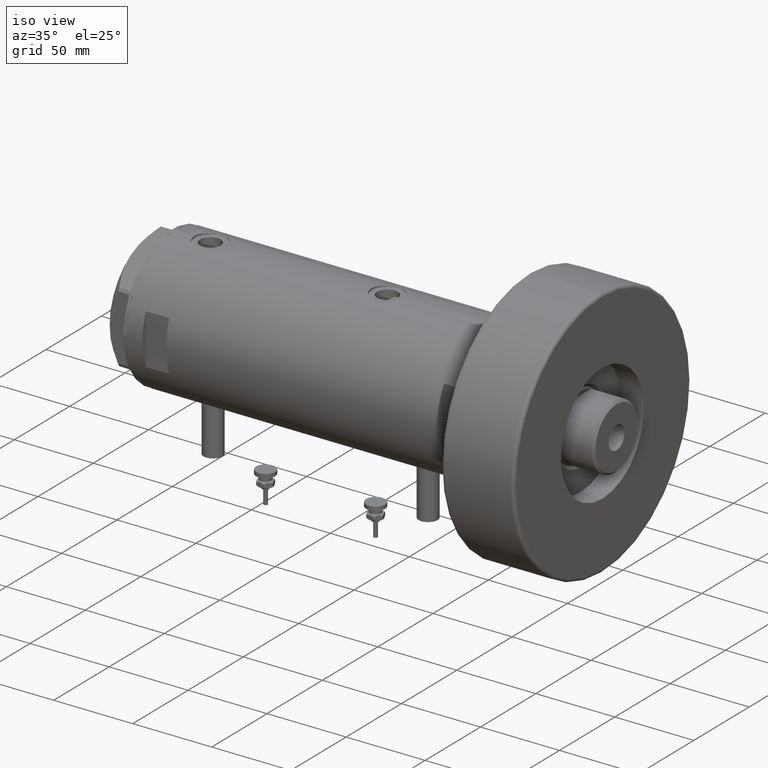
[diagram: clean part render]
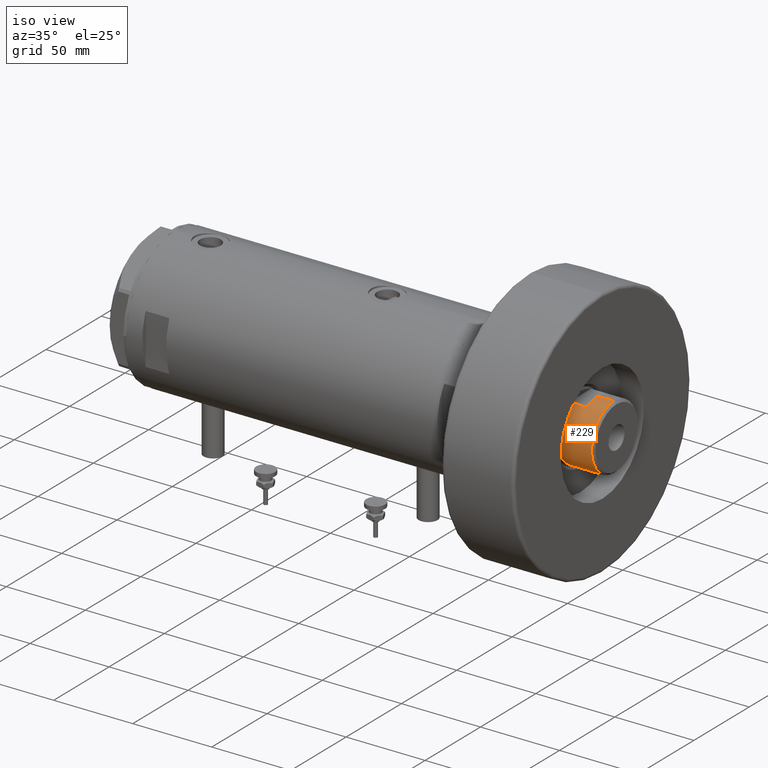
[diagram: same view with one face highlighted and labeled with its STEP entity id]
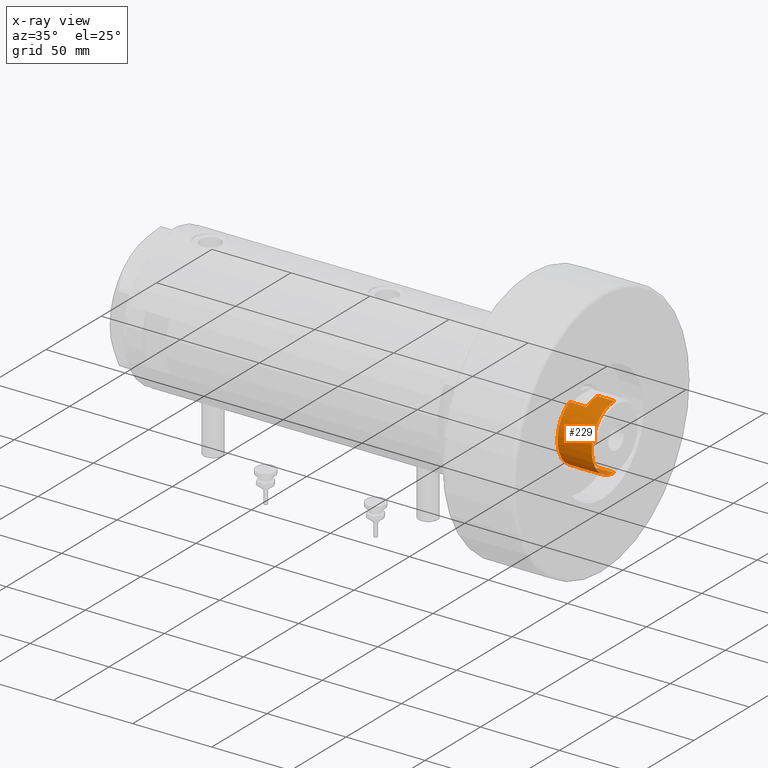
[diagram: x-ray of the same camera — body ghosted, the highlighted face saturated]
A machine part, iso view. The second image highlights one B-rep face of the part: STEP entity #229.
The next image is the same camera in x-ray: the body ghosted, the highlighted face saturated — about 0% of this face is hidden behind the body in this view.
In plain terms, the highlighted cylindrical surface (partial cylindrical patch) has radius 20.5 mm, axis along (-1, -0, 0).
Its self-contained STEP definition (entity closure, byte-faithful):
#2 = FACE_OUTER_BOUND ( 'NONE', #4655, .T. ) ;
#19 = CARTESIAN_POINT ( 'NONE',  ( 20.50000000000000355, 2.510525938252074481E-15, 251.9000000000001194 ) ) ;
#20 = CARTESIAN_POINT ( 'NONE',  ( -17.97852886083842705, -9.849999999999996092, 241.3000000000000114 ) ) ;
#69 = LINE ( 'NONE', #1146, #5638 ) ;
#76 = LINE ( 'NONE', #1019, #3202 ) ;
#103 = CYLINDRICAL_SURFACE ( 'NONE', #2315, 20.50000000000000355 ) ;
#229 = ADVANCED_FACE ( 'NONE', ( #2 ), #103, .T. ) ;
#287 = DIRECTION ( 'NONE',  ( 1.000000000000000000, 0.000000000000000000, 0.000000000000000000 ) ) ;
#379 = CARTESIAN_POINT ( 'NONE',  ( 17.97852886083843060, -9.849999999999994316, 241.3000000000000114 ) ) ;
#410 = DIRECTION ( 'NONE',  ( -0.000000000000000000, -0.000000000000000000, -1.000000000000000000 ) ) ;
#448 = VERTEX_POINT ( 'NONE', #5692 ) ;
#632 = EDGE_CURVE ( 'NONE', #5175, #656, #5910, .T. ) ;
#656 = VERTEX_POINT ( 'NONE', #4840 ) ;
#723 = EDGE_CURVE ( 'NONE', #5978, #2205, #6122, .T. ) ;
#1019 = CARTESIAN_POINT ( 'NONE',  ( -17.97852886083842350, -9.850000000000001421, 241.3000000000000114 ) ) ;
#1146 = CARTESIAN_POINT ( 'NONE',  ( 20.50000000000000355, 2.510525938252074481E-15, 241.3000000000000114 ) ) ;
#1244 = ORIENTED_EDGE ( 'NONE', *, *, #5894, .F. ) ;
#1262 = VERTEX_POINT ( 'NONE', #20 ) ;
#1325 = LINE ( 'NONE', #379, #1334 ) ;
#1334 = VECTOR ( 'NONE', #4749, 1000.000000000000000 ) ;
#1452 = EDGE_CURVE ( 'NONE', #3882, #2574, #5801, .T. ) ;
#1832 = CARTESIAN_POINT ( 'NONE',  ( 17.97852886083843060, -9.849999999999960565, 230.3000000000000114 ) ) ;
#2037 = CARTESIAN_POINT ( 'NONE',  ( 0.000000000000000000, 0.000000000000000000, 241.3000000000000114 ) ) ;
#2205 = VERTEX_POINT ( 'NONE', #2703 ) ;
#2315 = AXIS2_PLACEMENT_3D ( 'NONE', #2037, #3493, #3064 ) ;
#2528 = DIRECTION ( 'NONE',  ( -0.000000000000000000, -0.000000000000000000, -1.000000000000000000 ) ) ;
#2546 = ORIENTED_EDGE ( 'NONE', *, *, #2827, .T. ) ;
#2574 = VERTEX_POINT ( 'NONE', #1832 ) ;
#2612 = AXIS2_PLACEMENT_3D ( 'NONE', #4595, #3983, #2989 ) ;
#2626 = ORIENTED_EDGE ( 'NONE', *, *, #4481, .F. ) ;
#2703 = CARTESIAN_POINT ( 'NONE',  ( -20.50000000000000355, 0.000000000000000000, 251.9000000000001194 ) ) ;
#2723 = DIRECTION ( 'NONE',  ( 1.000000000000000000, 0.000000000000000000, 0.000000000000000000 ) ) ;
#2769 = VECTOR ( 'NONE', #410, 1000.000000000000000 ) ;
#2815 = CARTESIAN_POINT ( 'NONE',  ( 0.000000000000000000, 0.000000000000000000, 241.3000000000000114 ) ) ;
#2823 = ORIENTED_EDGE ( 'NONE', *, *, #632, .T. ) ;
#2827 = EDGE_CURVE ( 'NONE', #1262, #3882, #76, .T. ) ;
#2840 = LINE ( 'NONE', #4801, #2769 ) ;
#2909 = ORIENTED_EDGE ( 'NONE', *, *, #3902, .T. ) ;
#2941 = AXIS2_PLACEMENT_3D ( 'NONE', #2815, #6119, #287 ) ;
#2989 = DIRECTION ( 'NONE',  ( 1.000000000000000000, 0.000000000000000000, 0.000000000000000000 ) ) ;
#3064 = DIRECTION ( 'NONE',  ( -1.000000000000000000, 0.000000000000000000, 0.000000000000000000 ) ) ;
#3179 = DIRECTION ( 'NONE',  ( 0.000000000000000000, 0.000000000000000000, 1.000000000000000000 ) ) ;
#3202 = VECTOR ( 'NONE', #2528, 1000.000000000000000 ) ;
#3363 = CARTESIAN_POINT ( 'NONE',  ( 0.000000000000000000, 0.000000000000000000, 230.3000000000000114 ) ) ;
#3439 = AXIS2_PLACEMENT_3D ( 'NONE', #4588, #3179, #2723 ) ;
#3493 = DIRECTION ( 'NONE',  ( -0.000000000000000000, -0.000000000000000000, -1.000000000000000000 ) ) ;
#3850 = AXIS2_PLACEMENT_3D ( 'NONE', #3363, #4839, #4292 ) ;
#3874 = CARTESIAN_POINT ( 'NONE',  ( 17.97852886083843060, -9.849999999999994316, 241.3000000000000114 ) ) ;
#3882 = VERTEX_POINT ( 'NONE', #4264 ) ;
#3902 = EDGE_CURVE ( 'NONE', #448, #1262, #5733, .T. ) ;
#3983 = DIRECTION ( 'NONE',  ( 0.000000000000000000, 0.000000000000000000, -1.000000000000000000 ) ) ;
#4161 = ORIENTED_EDGE ( 'NONE', *, *, #723, .T. ) ;
#4256 = ORIENTED_EDGE ( 'NONE', *, *, #1452, .T. ) ;
#4264 = CARTESIAN_POINT ( 'NONE',  ( -17.97852886083842705, -9.849999999999972999, 230.3000000000000114 ) ) ;
#4292 = DIRECTION ( 'NONE',  ( 1.000000000000000000, 0.000000000000000000, 0.000000000000000000 ) ) ;
#4481 = EDGE_CURVE ( 'NONE', #5978, #656, #69, .T. ) ;
#4588 = CARTESIAN_POINT ( 'NONE',  ( 0.000000000000000000, 0.000000000000000000, 241.3000000000000114 ) ) ;
#4595 = CARTESIAN_POINT ( 'NONE',  ( 0.000000000000000000, 0.000000000000000000, 251.9000000000001194 ) ) ;
#4655 = EDGE_LOOP ( 'NONE', ( #2626, #4161, #5822, #2909, #2546, #4256, #1244, #2823 ) ) ;
#4749 = DIRECTION ( 'NONE',  ( -0.000000000000000000, -0.000000000000000000, -1.000000000000000000 ) ) ;
#4801 = CARTESIAN_POINT ( 'NONE',  ( -20.50000000000000355, 0.000000000000000000, 241.3000000000000114 ) ) ;
#4839 = DIRECTION ( 'NONE',  ( 0.000000000000000000, 0.000000000000000000, 1.000000000000000000 ) ) ;
#4840 = CARTESIAN_POINT ( 'NONE',  ( 20.50000000000000000, 2.510525938252074481E-15, 241.3000000000000114 ) ) ;
#5175 = VERTEX_POINT ( 'NONE', #3874 ) ;
#5449 = DIRECTION ( 'NONE',  ( -0.000000000000000000, -0.000000000000000000, -1.000000000000000000 ) ) ;
#5638 = VECTOR ( 'NONE', #5449, 1000.000000000000000 ) ;
#5692 = CARTESIAN_POINT ( 'NONE',  ( -20.50000000000000000, 0.000000000000000000, 241.3000000000000114 ) ) ;
#5733 = CIRCLE ( 'NONE', #2941, 20.50000000000000000 ) ;
#5801 = CIRCLE ( 'NONE', #3850, 20.50000000000000355 ) ;
#5822 = ORIENTED_EDGE ( 'NONE', *, *, #6289, .T. ) ;
#5894 = EDGE_CURVE ( 'NONE', #5175, #2574, #1325, .T. ) ;
#5910 = CIRCLE ( 'NONE', #3439, 20.50000000000000000 ) ;
#5978 = VERTEX_POINT ( 'NONE', #19 ) ;
#6119 = DIRECTION ( 'NONE',  ( 0.000000000000000000, 0.000000000000000000, 1.000000000000000000 ) ) ;
#6122 = CIRCLE ( 'NONE', #2612, 20.50000000000000355 ) ;
#6289 = EDGE_CURVE ( 'NONE', #2205, #448, #2840, .T. ) ;